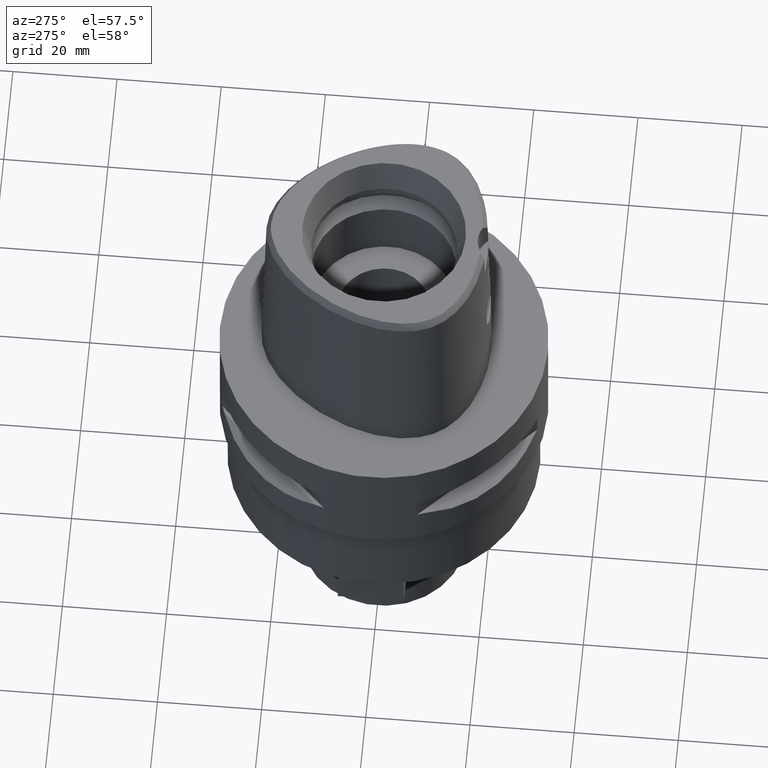
[diagram: clean part render]
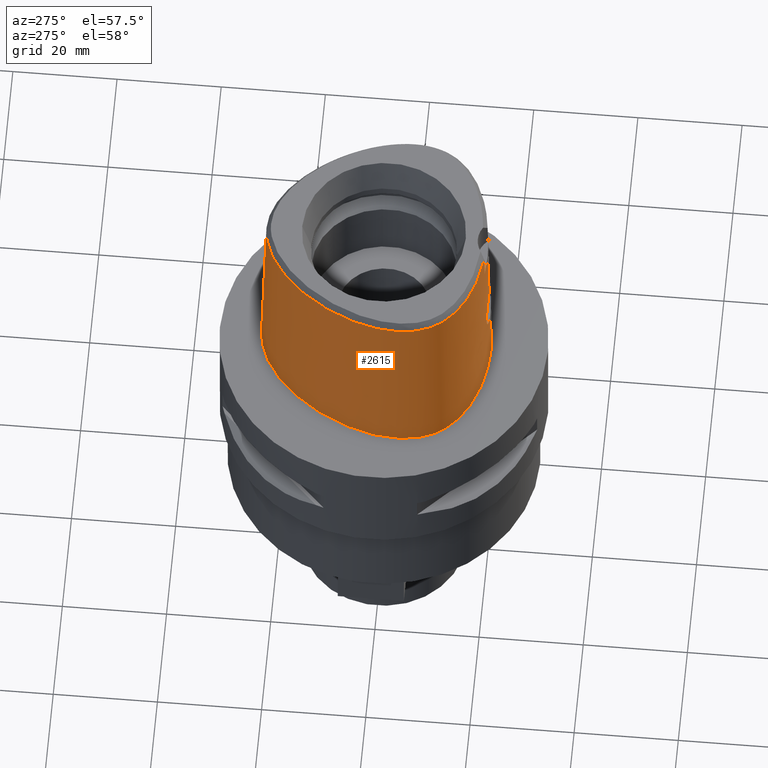
[diagram: same view with one face highlighted and labeled with its STEP entity id]
A machine part, auxiliary view. The second image highlights one B-rep face of the part: STEP entity #2615.
In plain terms, the highlighted face is a freeform B-spline surface patch.
Its self-contained STEP definition (entity closure, byte-faithful):
#202=CARTESIAN_POINT('',(-3.637738201364E0,-1.956971413237E1,3.652186244848E1));
#203=CARTESIAN_POINT('',(-4.486932885481E0,-1.947923535722E1,3.652183681646E1));
#204=CARTESIAN_POINT('',(-6.101212647339E0,-1.924210963504E1,3.652187752429E1));
#205=CARTESIAN_POINT('',(-8.254631691771E0,-1.875971295293E1,3.652186163132E1));
#206=CARTESIAN_POINT('',(-1.007598729789E1,-1.821444384571E1,3.652186218780E1));
#207=CARTESIAN_POINT('',(-1.169654532737E1,-1.760826827091E1,3.652186817716E1));
#208=CARTESIAN_POINT('',(-1.318420354667E1,-1.692845210417E1,3.652186461354E1));
#209=CARTESIAN_POINT('',(-1.454623217160E1,-1.617852293546E1,3.652186686001E1));
#210=CARTESIAN_POINT('',(-1.580964712866E1,-1.534227721997E1,3.652187346644E1));
#211=CARTESIAN_POINT('',(-1.692926369281E1,-1.444688220072E1,3.652186243370E1));
#212=CARTESIAN_POINT('',(-1.787345800209E1,-1.353569366994E1,3.652187701555E1));
#213=CARTESIAN_POINT('',(-1.867063399162E1,-1.260470986936E1,3.652185017249E1));
#214=CARTESIAN_POINT('',(-1.932886034372E1,-1.166552922317E1,3.652190248902E1));
#215=CARTESIAN_POINT('',(-1.987853970588E1,-1.068960508297E1,3.652186419304E1));
#216=CARTESIAN_POINT('',(-2.034776195062E1,-9.623507358363E0,3.652186400976E1));
#217=CARTESIAN_POINT('',(-2.073553510204E1,-8.445808241732E0,3.652187125078E1));
#218=CARTESIAN_POINT('',(-2.103240200113E1,-7.141622069972E0,3.652186475231E1));
#219=CARTESIAN_POINT('',(-2.122265042573E1,-5.695641138325E0,3.652186967309E1));
#220=CARTESIAN_POINT('',(-2.128749296478E1,-4.177126351640E0,3.652186545121E1));
#221=CARTESIAN_POINT('',(-2.122983439707E1,-2.610073835341E0,3.652186694925E1));
#222=CARTESIAN_POINT('',(-2.104763385542E1,-9.671913455925E-1,
3.652186739195E1));
#223=CARTESIAN_POINT('',(-2.073230745605E1,7.634491119599E-1,3.652186412544E1));
#224=CARTESIAN_POINT('',(-2.025446144837E1,2.654421161613E0,3.652186236132E1));
#225=CARTESIAN_POINT('',(-1.954675941223E1,4.803796890117E0,3.652186894586E1));
#226=CARTESIAN_POINT('',(-1.857319827940E1,7.140710386331E0,3.652185771818E1));
#227=CARTESIAN_POINT('',(-1.739857824020E1,9.445579087779E0,3.652185113077E1));
#228=CARTESIAN_POINT('',(-1.604940642725E1,1.166587527492E1,3.652187557152E1));
#229=CARTESIAN_POINT('',(-1.455493411980E1,1.375221108986E1,3.652185704300E1));
#230=CARTESIAN_POINT('',(-1.300329151091E1,1.559776192680E1,3.652187328236E1));
#231=CARTESIAN_POINT('',(-1.155862161445E1,1.707808949397E1,3.652185864653E1));
#232=CARTESIAN_POINT('',(-1.020478049702E1,1.828956605743E1,3.652186913946E1));
#233=CARTESIAN_POINT('',(-8.874682476541E0,1.932551116007E1,3.652186760214E1));
#234=CARTESIAN_POINT('',(-7.545395588133E0,2.021521272114E1,3.652186775024E1));
#235=CARTESIAN_POINT('',(-6.201273240435E0,2.097156371629E1,3.652186494857E1));
#236=CARTESIAN_POINT('',(-4.851360784127E0,2.158722018411E1,3.652187204991E1));
#237=CARTESIAN_POINT('',(-3.536645305539E0,2.204649321013E1,3.652186542900E1));
#238=CARTESIAN_POINT('',(-2.302563744641E0,2.235126219632E1,3.652188129796E1));
#239=CARTESIAN_POINT('',(-1.120650484306E0,2.252540464369E1,3.652177653667E1));
#240=CARTESIAN_POINT('',(-3.747147296148E-1,2.256201468012E1,3.652186680743E1));
#241=CARTESIAN_POINT('',(-1.528869574988E-11,2.256201468012E1,
3.652186680744E1));
#253=CARTESIAN_POINT('',(-3.637738201364E0,-1.956971413237E1,3.652186244848E1));
#254=CARTESIAN_POINT('',(-3.649042726833E0,-1.958170231834E1,3.599710491520E1));
#255=CARTESIAN_POINT('',(-3.671106183707E0,-1.960533297179E1,3.494764182412E1));
#256=CARTESIAN_POINT('',(-3.704089539557E0,-1.964135162194E1,3.337369009748E1));
#257=CARTESIAN_POINT('',(-3.726005756395E0,-1.966575923510E1,3.232454432382E1));
#258=CARTESIAN_POINT('',(-3.736696126116E0,-1.967778323257E1,3.18E1));
#263=DIRECTION('',(-1.665636307781E-9,-2.499140646182E-2,-9.996876660253E-1));
#264=VECTOR('',#263,1.225382733632E1);
#265=CARTESIAN_POINT('',(2.041042029991E-8,-1.988004246002E1,3.180000004972E1));
#266=LINE('',#265,#264);
#270=CARTESIAN_POINT('',(0.E0,-2.018628283969E1,1.955E1));
#271=CARTESIAN_POINT('',(-3.243701608429E-1,-2.018628283969E1,1.955E1));
#272=CARTESIAN_POINT('',(-9.743922693066E-1,-2.017906114381E1,
1.947154106128E1));
#273=CARTESIAN_POINT('',(-1.896232141680E0,-2.014931179092E1,1.912395571390E1));
#274=CARTESIAN_POINT('',(-2.712124135698E0,-2.010849530343E1,1.856039788617E1));
#275=CARTESIAN_POINT('',(-3.358068455712E0,-2.006924018353E1,1.783307698234E1));
#276=CARTESIAN_POINT('',(-3.820339100940E0,-2.004237939498E1,1.696006553702E1));
#277=CARTESIAN_POINT('',(-4.058061164497E0,-2.003874860457E1,1.600503215639E1));
#278=CARTESIAN_POINT('',(-4.061154358626E0,-2.006310886420E1,1.502274339889E1));
#279=CARTESIAN_POINT('',(-3.831558757555E0,-2.011380078389E1,1.407051807603E1));
#280=CARTESIAN_POINT('',(-3.377058989600E0,-2.018390172847E1,1.319401437603E1));
#281=CARTESIAN_POINT('',(-2.731499565195E0,-2.026010966986E1,1.245549954492E1));
#282=CARTESIAN_POINT('',(-1.905564909619E0,-2.033027273914E1,1.187955241653E1));
#283=CARTESIAN_POINT('',(-9.731403850582E-1,-2.037779275902E1,
1.152765488554E1));
#284=CARTESIAN_POINT('',(-3.229534856996E-1,-2.038876923348E1,1.145E1));
#285=CARTESIAN_POINT('',(-1.530958934190E-12,-2.038876923348E1,1.145E1));
#290=DIRECTION('',(-9.378370189415E-13,-2.499051295361E-2,-9.996876883619E-1));
#291=VECTOR('',#290,1.145357708542E1);
#292=CARTESIAN_POINT('',(-1.530958934190E-12,-2.038876923348E1,1.145E1));
#293=LINE('',#292,#291);
#357=CARTESIAN_POINT('',(6.174350309662E-11,2.347499999999E1,
1.435888445182E-13));
#358=CARTESIAN_POINT('',(-3.922185481802E-1,2.347499999999E1,
1.435888445182E-13));
#359=CARTESIAN_POINT('',(-1.192452828064E0,2.343666339267E1,
-6.663981465665E-14));
#360=CARTESIAN_POINT('',(-2.436071162062E0,2.325614985921E1,
1.785608452101E-14));
#361=CARTESIAN_POINT('',(-3.735376992559E0,2.294031892303E1,0.E0));
#362=CARTESIAN_POINT('',(-5.096074325782E0,2.247304060645E1,0.E0));
#363=CARTESIAN_POINT('',(-6.523433194312E0,2.183446209713E1,0.E0));
#364=CARTESIAN_POINT('',(-8.018601373883E0,2.100198192708E1,0.E0));
#365=CARTESIAN_POINT('',(-9.576863589983E0,1.995235315798E1,0.E0));
#366=CARTESIAN_POINT('',(-1.118551840690E1,1.866469546749E1,0.E0));
#367=CARTESIAN_POINT('',(-1.282027443415E1,1.712663354368E1,0.E0));
#368=CARTESIAN_POINT('',(-1.444566204824E1,1.533926177815E1,0.E0));
#369=CARTESIAN_POINT('',(-1.601468534716E1,1.332431286467E1,0.E0));
#370=CARTESIAN_POINT('',(-1.747357028946E1,1.112808449198E1,0.E0));
#371=CARTESIAN_POINT('',(-1.877388213298E1,8.811806806083E0,0.E0));
#372=CARTESIAN_POINT('',(-1.988080453253E1,6.439998330068E0,0.E0));
#373=CARTESIAN_POINT('',(-2.076892223707E1,4.088180826554E0,0.E0));
#374=CARTESIAN_POINT('',(-2.143168150409E1,1.820114675266E0,0.E0));
#375=CARTESIAN_POINT('',(-2.187831118513E1,-3.193610771650E-1,0.E0));
#376=CARTESIAN_POINT('',(-2.212810764879E1,-2.304531911324E0,0.E0));
#377=CARTESIAN_POINT('',(-2.220492294391E1,-4.125759347829E0,0.E0));
#378=CARTESIAN_POINT('',(-2.213275692383E1,-5.785749221796E0,0.E0));
#379=CARTESIAN_POINT('',(-2.193320056457E1,-7.293164531941E0,0.E0));
#380=CARTESIAN_POINT('',(-2.162363502782E1,-8.662637077279E0,0.E0));
#381=CARTESIAN_POINT('',(-2.121772291412E1,-9.906556593905E0,0.E0));
#382=CARTESIAN_POINT('',(-2.072511665148E1,-1.103957141404E1,0.E0));
#383=CARTESIAN_POINT('',(-2.014310543114E1,-1.208753462180E1,0.E0));
#384=CARTESIAN_POINT('',(-1.945146109793E1,-1.308813764943E1,0.E0));
#385=CARTESIAN_POINT('',(-1.862700455851E1,-1.406745191856E1,0.E0));
#386=CARTESIAN_POINT('',(-1.765013258891E1,-1.502839690312E1,0.E0));
#387=CARTESIAN_POINT('',(-1.650610752406E1,-1.596421345287E1,0.E0));
#388=CARTESIAN_POINT('',(-1.517311799540E1,-1.686956787633E1,0.E0));
#389=CARTESIAN_POINT('',(-1.363179589720E1,-1.773199057028E1,0.E0));
#390=CARTESIAN_POINT('',(-1.186586290719E1,-1.853387300556E1,0.E0));
#391=CARTESIAN_POINT('',(-9.867372074733E0,-1.925170087602E1,0.E0));
#392=CARTESIAN_POINT('',(-7.642658549412E0,-1.985685307720E1,0.E0));
#393=CARTESIAN_POINT('',(-5.219916498495E0,-2.031878763544E1,
1.821964912853E-14));
#394=CARTESIAN_POINT('',(-2.643022211903E0,-2.060901680519E1,
-6.799665624374E-14));
#395=CARTESIAN_POINT('',(-8.905551568325E-1,-2.0675E1,1.465124318164E-13));
#396=CARTESIAN_POINT('',(-1.227254752420E-11,-2.0675E1,1.465124318164E-13));
#1093=DIRECTION('',(2.108548864723E-12,2.499051290954E-2,-9.996876883630E-1));
#1094=VECTOR('',#1093,3.653327657485E1);
#1095=CARTESIAN_POINT('',(-1.528869574988E-11,2.256201468012E1,
3.652186680744E1));
#1096=LINE('',#1095,#1094);
#1110=CARTESIAN_POINT('',(2.041042029991E-8,-1.988004246002E1,
3.180000004972E1));
#1111=CARTESIAN_POINT('',(-4.161790280178E-1,-1.988004245993E1,
3.180000004972E1));
#1112=CARTESIAN_POINT('',(-1.247889105566E0,-1.986528007158E1,
3.179999997680E1));
#1113=CARTESIAN_POINT('',(-2.494485023973E0,-1.979770229313E1,
3.180000000663E1));
#1114=CARTESIAN_POINT('',(-3.322953884429E0,-1.972294683092E1,3.18E1));
#1115=CARTESIAN_POINT('',(-3.736696126116E0,-1.967778323257E1,3.18E1));
#1743=CARTESIAN_POINT('',(-3.736722311399E0,-1.967781602444E1,3.18E1));
#1744=VERTEX_POINT('',#1743);
#1745=VERTEX_POINT('',#253);
#1746=CARTESIAN_POINT('',(-1.528869574988E-11,2.256201468012E1,
3.652186680744E1));
#1747=VERTEX_POINT('',#1746);
#1748=VERTEX_POINT('',#357);
#1749=VERTEX_POINT('',#396);
#1750=VERTEX_POINT('',#1110);
#1751=CARTESIAN_POINT('',(0.E0,-2.018628283969E1,1.955E1));
#1752=VERTEX_POINT('',#1751);
#1753=VERTEX_POINT('',#285);
#2498=CARTESIAN_POINT('',(7.234356452338E-1,2.347140592844E1,
-7.304377495756E-1));
#2499=CARTESIAN_POINT('',(7.042335260937E-1,2.315549817753E1,1.193048324307E1));
#2500=CARTESIAN_POINT('',(6.850314069536E-1,2.283959042663E1,2.459140423571E1));
#2501=CARTESIAN_POINT('',(6.658292878135E-1,2.252368267573E1,3.725232522835E1));
#2502=CARTESIAN_POINT('',(4.823619558240E-1,2.348603818389E1,
-7.304377495756E-1));
#2503=CARTESIAN_POINT('',(4.696382036151E-1,2.316972802780E1,1.193048324307E1));
#2504=CARTESIAN_POINT('',(4.569144514061E-1,2.285341787172E1,2.459140423571E1));
#2505=CARTESIAN_POINT('',(4.441906991971E-1,2.253710771563E1,3.725232522835E1));
#2506=CARTESIAN_POINT('',(-6.149727127816E-1,2.351889465104E1,
-7.304377495756E-1));
#2507=CARTESIAN_POINT('',(-5.985508170585E-1,2.320171274960E1,
1.193048324307E1));
#2508=CARTESIAN_POINT('',(-5.821289213354E-1,2.288453084817E1,
2.459140423571E1));
#2509=CARTESIAN_POINT('',(-5.657070256123E-1,2.256734894673E1,
3.725232522835E1));
#2510=CARTESIAN_POINT('',(-2.568271206139E0,2.331126238563E1,
-7.304377495756E-1));
#2511=CARTESIAN_POINT('',(-2.503210900325E0,2.299958936807E1,1.193048324307E1));
#2512=CARTESIAN_POINT('',(-2.438150594511E0,2.268791635051E1,2.459140423571E1));
#2513=CARTESIAN_POINT('',(-2.373090288697E0,2.237624333295E1,3.725232522835E1));
#2514=CARTESIAN_POINT('',(-5.105252916757E0,2.254305024403E1,
-7.304377495756E-1));
#2515=CARTESIAN_POINT('',(-4.987110659212E0,2.224795278511E1,1.193048324307E1));
#2516=CARTESIAN_POINT('',(-4.868968401666E0,2.195285532619E1,2.459140423571E1));
#2517=CARTESIAN_POINT('',(-4.750826144121E0,2.165775786727E1,3.725232522835E1));
#2518=CARTESIAN_POINT('',(-7.580410841043E0,2.133037926442E1,
-7.304377495756E-1));
#2519=CARTESIAN_POINT('',(-7.420053125052E0,2.105635743116E1,1.193048324307E1));
#2520=CARTESIAN_POINT('',(-7.259695409062E0,2.078233559789E1,2.459140423571E1));
#2521=CARTESIAN_POINT('',(-7.099337693071E0,2.050831376463E1,3.725232522835E1));
#2522=CARTESIAN_POINT('',(-1.075753573929E1,1.918839675887E1,
-7.304377495756E-1));
#2523=CARTESIAN_POINT('',(-1.055288404194E1,1.894467585516E1,1.193048324307E1));
#2524=CARTESIAN_POINT('',(-1.034823234459E1,1.870095495145E1,2.459140423571E1));
#2525=CARTESIAN_POINT('',(-1.014358064725E1,1.845723404774E1,3.725232522835E1));
#2526=CARTESIAN_POINT('',(-1.442198652137E1,1.565278600366E1,
-7.304377495756E-1));
#2527=CARTESIAN_POINT('',(-1.417879757043E1,1.544741194021E1,1.193048324307E1));
#2528=CARTESIAN_POINT('',(-1.393560861949E1,1.524203787677E1,2.459140423571E1));
#2529=CARTESIAN_POINT('',(-1.369241966855E1,1.503666381333E1,3.725232522835E1));
#2530=CARTESIAN_POINT('',(-1.808416038470E1,1.044089487301E1,
-7.304377495756E-1));
#2531=CARTESIAN_POINT('',(-1.780867306122E1,1.028184207416E1,1.193048324307E1));
#2532=CARTESIAN_POINT('',(-1.753318573775E1,1.012278927530E1,2.459140423571E1));
#2533=CARTESIAN_POINT('',(-1.725769841427E1,9.963736476444E0,3.725232522835E1));
#2534=CARTESIAN_POINT('',(-2.076670355079E1,4.663413654591E0,
-7.304377495756E-1));
#2535=CARTESIAN_POINT('',(-2.046725042285E1,4.555493641676E0,1.193048324307E1));
#2536=CARTESIAN_POINT('',(-2.016779729491E1,4.447573628761E0,2.459140423571E1));
#2537=CARTESIAN_POINT('',(-1.986834416698E1,4.339653615846E0,3.725232522835E1));
#2538=CARTESIAN_POINT('',(-2.199640701768E1,-2.778990159201E-1,
-7.304377495756E-1));
#2539=CARTESIAN_POINT('',(-2.168301099423E1,-3.332744066384E-1,
1.193048324307E1));
#2540=CARTESIAN_POINT('',(-2.136961497079E1,-3.886497973566E-1,
2.459140423571E1));
#2541=CARTESIAN_POINT('',(-2.105621894734E1,-4.440251880748E-1,
3.725232522835E1));
#2542=CARTESIAN_POINT('',(-2.226285556714E1,-4.100361500039E0,
-7.304377495756E-1));
#2543=CARTESIAN_POINT('',(-2.194536976491E1,-4.102220499369E0,
1.193048324307E1));
#2544=CARTESIAN_POINT('',(-2.162788396268E1,-4.104079498700E0,
2.459140423571E1));
#2545=CARTESIAN_POINT('',(-2.131039816045E1,-4.105938498031E0,
3.725232522835E1));
#2546=CARTESIAN_POINT('',(-2.207548129285E1,-6.850245535735E0,
-7.304377495756E-1));
#2547=CARTESIAN_POINT('',(-2.176083709922E1,-6.805026041325E0,
1.193048324307E1));
#2548=CARTESIAN_POINT('',(-2.144619290559E1,-6.759806546915E0,
2.459140423571E1));
#2549=CARTESIAN_POINT('',(-2.113154871196E1,-6.714587052505E0,
3.725232522835E1));
#2550=CARTESIAN_POINT('',(-2.157281239431E1,-9.001246195687E0,
-7.304377495756E-1));
#2551=CARTESIAN_POINT('',(-2.126836740123E1,-8.910752241286E0,
1.193048324307E1));
#2552=CARTESIAN_POINT('',(-2.096392240815E1,-8.820258286885E0,
2.459140423571E1));
#2553=CARTESIAN_POINT('',(-2.065947741506E1,-8.729764332484E0,
3.725232522835E1));
#2554=CARTESIAN_POINT('',(-2.094844326026E1,-1.061175397070E1,
-7.304377495756E-1));
#2555=CARTESIAN_POINT('',(-2.065879046572E1,-1.048283618692E1,
1.193048324307E1));
#2556=CARTESIAN_POINT('',(-2.036913767117E1,-1.035391840315E1,
2.459140423571E1));
#2557=CARTESIAN_POINT('',(-2.007948487663E1,-1.022500061937E1,
3.725232522835E1));
#2558=CARTESIAN_POINT('',(-2.036546124665E1,-1.175800453295E1,
-7.304377495756E-1));
#2559=CARTESIAN_POINT('',(-2.009084472129E1,-1.159945460751E1,
1.193048324307E1));
#2560=CARTESIAN_POINT('',(-1.981622819593E1,-1.144090468207E1,
2.459140423571E1));
#2561=CARTESIAN_POINT('',(-1.954161167057E1,-1.128235475663E1,
3.725232522835E1));
#2562=CARTESIAN_POINT('',(-1.966427014769E1,-1.283600704776E1,
-7.304377495756E-1));
#2563=CARTESIAN_POINT('',(-1.940779767089E1,-1.264961926152E1,
1.193048324307E1));
#2564=CARTESIAN_POINT('',(-1.915132519409E1,-1.246323147529E1,
2.459140423571E1));
#2565=CARTESIAN_POINT('',(-1.889485271730E1,-1.227684368905E1,
3.725232522835E1));
#2566=CARTESIAN_POINT('',(-1.858171406715E1,-1.418198046671E1,
-7.304377495756E-1));
#2567=CARTESIAN_POINT('',(-1.835112152789E1,-1.396357034576E1,
1.193048324307E1));
#2568=CARTESIAN_POINT('',(-1.812052898863E1,-1.374516022481E1,
2.459140423571E1));
#2569=CARTESIAN_POINT('',(-1.788993644936E1,-1.352675010386E1,
3.725232522835E1));
#2570=CARTESIAN_POINT('',(-1.697022731218E1,-1.569280483253E1,
-7.304377495756E-1));
#2571=CARTESIAN_POINT('',(-1.677374381720E1,-1.544292471453E1,
1.193048324307E1));
#2572=CARTESIAN_POINT('',(-1.657726032221E1,-1.519304459653E1,
2.459140423571E1));
#2573=CARTESIAN_POINT('',(-1.638077682723E1,-1.494316447853E1,
3.725232522835E1));
#2574=CARTESIAN_POINT('',(-1.468244497206E1,-1.723001773182E1,
-7.304377495756E-1));
#2575=CARTESIAN_POINT('',(-1.452531262239E1,-1.695413746359E1,
1.193048324307E1));
#2576=CARTESIAN_POINT('',(-1.436818027272E1,-1.667825719536E1,
2.459140423571E1));
#2577=CARTESIAN_POINT('',(-1.421104792305E1,-1.640237692713E1,
3.725232522835E1));
#2578=CARTESIAN_POINT('',(-1.123887130313E1,-1.891049776180E1,
-7.304377495756E-1));
#2579=CARTESIAN_POINT('',(-1.113012654836E1,-1.861140114064E1,
1.193048324307E1));
#2580=CARTESIAN_POINT('',(-1.102138179358E1,-1.831230451947E1,
2.459140423571E1));
#2581=CARTESIAN_POINT('',(-1.091263703881E1,-1.801320789830E1,
3.725232522835E1));
#2582=CARTESIAN_POINT('',(-6.344715577008E0,-2.031619965140E1,
-7.304377495756E-1));
#2583=CARTESIAN_POINT('',(-6.288476575212E0,-2.000290569385E1,
1.193048324307E1));
#2584=CARTESIAN_POINT('',(-6.232237573416E0,-1.968961173630E1,
2.459140423571E1));
#2585=CARTESIAN_POINT('',(-6.175998571620E0,-1.937631777876E1,
3.725232522835E1));
#2586=CARTESIAN_POINT('',(-1.886862292324E0,-2.071358860087E1,
-7.304377495756E-1));
#2587=CARTESIAN_POINT('',(-1.870070490574E0,-2.039691389772E1,
1.193048324307E1));
#2588=CARTESIAN_POINT('',(-1.853278688823E0,-2.008023919457E1,
2.459140423571E1));
#2589=CARTESIAN_POINT('',(-1.836486887073E0,-1.976356449141E1,
3.725232522835E1));
#2590=CARTESIAN_POINT('',(4.560943670330E-1,-2.069106768654E1,
-7.304377495756E-1));
#2591=CARTESIAN_POINT('',(4.520368078294E-1,-2.037458457776E1,
1.193048324307E1));
#2592=CARTESIAN_POINT('',(4.479792486259E-1,-2.005810146897E1,
2.459140423571E1));
#2593=CARTESIAN_POINT('',(4.439216894223E-1,-1.974161836018E1,
3.725232522835E1));
#2594=CARTESIAN_POINT('',(6.840430853903E-1,-2.068668155162E1,
-7.304377495756E-1));
#2595=CARTESIAN_POINT('',(6.779535337585E-1,-2.037023519614E1,
1.193048324307E1));
#2596=CARTESIAN_POINT('',(6.718639821267E-1,-2.005378884066E1,
2.459140423571E1));
#2597=CARTESIAN_POINT('',(6.657744304949E-1,-1.973734248519E1,
3.725232522835E1));
#2598=B_SPLINE_SURFACE_WITH_KNOTS('',3,3,((#2498,#2499,#2500,#2501),(#2502,
#2503,#2504,#2505),(#2506,#2507,#2508,#2509),(#2510,#2511,#2512,#2513),(#2514,
#2515,#2516,#2517),(#2518,#2519,#2520,#2521),(#2522,#2523,#2524,#2525),(#2526,
#2527,#2528,#2529),(#2530,#2531,#2532,#2533),(#2534,#2535,#2536,#2537),(#2538,
#2539,#2540,#2541),(#2542,#2543,#2544,#2545),(#2546,#2547,#2548,#2549),(#2550,
#2551,#2552,#2553),(#2554,#2555,#2556,#2557),(#2558,#2559,#2560,#2561),(#2562,
#2563,#2564,#2565),(#2566,#2567,#2568,#2569),(#2570,#2571,#2572,#2573),(#2574,
#2575,#2576,#2577),(#2578,#2579,#2580,#2581),(#2582,#2583,#2584,#2585),(#2586,
#2587,#2588,#2589),(#2590,#2591,#2592,#2593),(#2594,#2595,#2596,#2597)),
.UNSPECIFIED.,.F.,.F.,.F.,(4,1,1,1,1,1,1,1,1,1,1,1,1,1,1,1,1,1,1,1,1,1,4),(4,4),
(-1.173777939055E-2,0.E0,4.166666666762E-2,8.333333333423E-2,1.250000000008E-1,
1.666666666675E-1,2.500000000007E-1,3.333333333339E-1,4.166666666672E-1,
5.000000000004E-1,5.416666666670E-1,5.833333333336E-1,6.250000000002E-1,
6.458333333335E-1,6.666666666669E-1,6.875000000002E-1,7.083333333334E-1,
7.500000000001E-1,7.916666666667E-1,8.333333333333E-1,9.166666666666E-1,1.E0,
1.008985696609E0),(-4.488396772306E-10,1.000000022891E0),.UNSPECIFIED.);
#2600=ORIENTED_EDGE('',*,*,#2599,.F.);
#2602=ORIENTED_EDGE('',*,*,#2601,.F.);
#2603=ORIENTED_EDGE('',*,*,#2491,.F.);
#2604=ORIENTED_EDGE('',*,*,#1976,.T.);
#2606=ORIENTED_EDGE('',*,*,#2605,.F.);
#2608=ORIENTED_EDGE('',*,*,#2607,.T.);
#2610=ORIENTED_EDGE('',*,*,#2609,.T.);
#2612=ORIENTED_EDGE('',*,*,#2611,.T.);
#2613=EDGE_LOOP('',(#2600,#2602,#2603,#2604,#2606,#2608,#2610,#2612));
#2614=FACE_OUTER_BOUND('',#2613,.F.);
#242=B_SPLINE_CURVE_WITH_KNOTS('',3,(#202,#203,#204,#205,#206,#207,#208,#209,
#210,#211,#212,#213,#214,#215,#216,#217,#218,#219,#220,#221,#222,#223,#224,#225,
#226,#227,#228,#229,#230,#231,#232,#233,#234,#235,#236,#237,#238,#239,#240,
#241),.UNSPECIFIED.,.F.,.F.,(4,1,1,1,1,1,1,1,1,1,1,1,1,1,1,1,1,1,1,1,1,1,1,1,1,
1,1,1,1,1,1,1,1,1,1,1,1,4),(0.E0,2.702702702703E-2,5.405405405405E-2,
8.108108108108E-2,1.081081081081E-1,1.351351351351E-1,1.621621621622E-1,
1.891891891892E-1,2.162162162162E-1,2.432432432432E-1,2.702702702703E-1,
2.972972972973E-1,3.243243243243E-1,3.513513513514E-1,3.783783783784E-1,
4.054054054054E-1,4.324324324324E-1,4.594594594595E-1,4.864864864865E-1,
5.135135135135E-1,5.405405405405E-1,5.675675675676E-1,5.945945945946E-1,
6.216216216216E-1,6.486486486486E-1,6.756756756757E-1,7.027027027027E-1,
7.297297297297E-1,7.567567567568E-1,7.837837837838E-1,8.108108108108E-1,
8.378378378378E-1,8.648648648649E-1,8.918918918919E-1,9.189189189189E-1,
9.459459459459E-1,9.729729729730E-1,1.E0),.UNSPECIFIED.);
#259=B_SPLINE_CURVE_WITH_KNOTS('',3,(#253,#254,#255,#256,#257,#258),
.UNSPECIFIED.,.F.,.F.,(4,1,1,4),(0.E0,3.333333333333E-1,6.666666666667E-1,1.E0),
.UNSPECIFIED.);
#286=B_SPLINE_CURVE_WITH_KNOTS('',3,(#270,#271,#272,#273,#274,#275,#276,#277,
#278,#279,#280,#281,#282,#283,#284,#285),.UNSPECIFIED.,.F.,.F.,(4,1,1,1,1,1,1,1,
1,1,1,1,1,4),(0.E0,7.692307692308E-2,1.538461538462E-1,2.307692307692E-1,
3.076923076923E-1,3.846153846154E-1,4.615384615385E-1,5.384615384615E-1,
6.153846153846E-1,6.923076923077E-1,7.692307692308E-1,8.461538461538E-1,
9.230769230769E-1,1.E0),.UNSPECIFIED.);
#397=B_SPLINE_CURVE_WITH_KNOTS('',3,(#357,#358,#359,#360,#361,#362,#363,#364,
#365,#366,#367,#368,#369,#370,#371,#372,#373,#374,#375,#376,#377,#378,#379,#380,
#381,#382,#383,#384,#385,#386,#387,#388,#389,#390,#391,#392,#393,#394,#395,
#396),.UNSPECIFIED.,.F.,.F.,(4,1,1,1,1,1,1,1,1,1,1,1,1,1,1,1,1,1,1,1,1,1,1,1,1,
1,1,1,1,1,1,1,1,1,1,1,1,4),(0.E0,2.702702702703E-2,5.405405405405E-2,
8.108108108108E-2,1.081081081081E-1,1.351351351351E-1,1.621621621622E-1,
1.891891891892E-1,2.162162162162E-1,2.432432432432E-1,2.702702702703E-1,
2.972972972973E-1,3.243243243243E-1,3.513513513514E-1,3.783783783784E-1,
4.054054054054E-1,4.324324324324E-1,4.594594594595E-1,4.864864864865E-1,
5.135135135135E-1,5.405405405405E-1,5.675675675676E-1,5.945945945946E-1,
6.216216216216E-1,6.486486486486E-1,6.756756756757E-1,7.027027027027E-1,
7.297297297297E-1,7.567567567568E-1,7.837837837838E-1,8.108108108108E-1,
8.378378378378E-1,8.648648648649E-1,8.918918918919E-1,9.189189189189E-1,
9.459459459459E-1,9.729729729730E-1,1.E0),.UNSPECIFIED.);
#1116=B_SPLINE_CURVE_WITH_KNOTS('',3,(#1110,#1111,#1112,#1113,#1114,#1115),
.UNSPECIFIED.,.F.,.F.,(4,1,1,4),(0.E0,3.333333333333E-1,6.666666666667E-1,1.E0),
.UNSPECIFIED.);
#1976=EDGE_CURVE('',#1745,#1744,#259,.T.);
#2491=EDGE_CURVE('',#1745,#1747,#242,.T.);
#2599=EDGE_CURVE('',#1748,#1749,#397,.T.);
#2601=EDGE_CURVE('',#1747,#1748,#1096,.T.);
#2605=EDGE_CURVE('',#1750,#1744,#1116,.T.);
#2607=EDGE_CURVE('',#1750,#1752,#266,.T.);
#2609=EDGE_CURVE('',#1752,#1753,#286,.T.);
#2611=EDGE_CURVE('',#1753,#1749,#293,.T.);
#2615=ADVANCED_FACE('',(#2614),#2598,.T.);